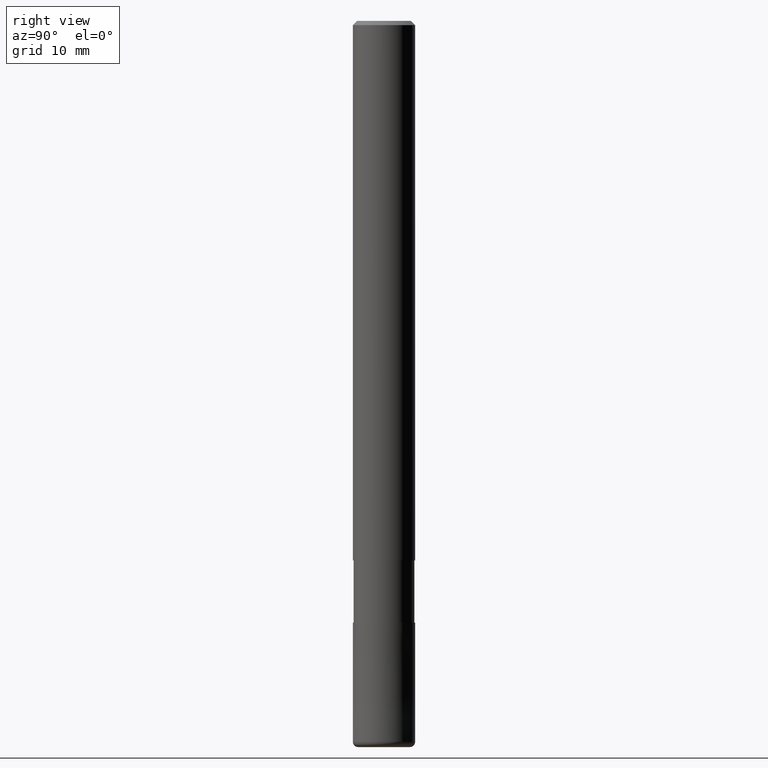
[diagram: clean part render]
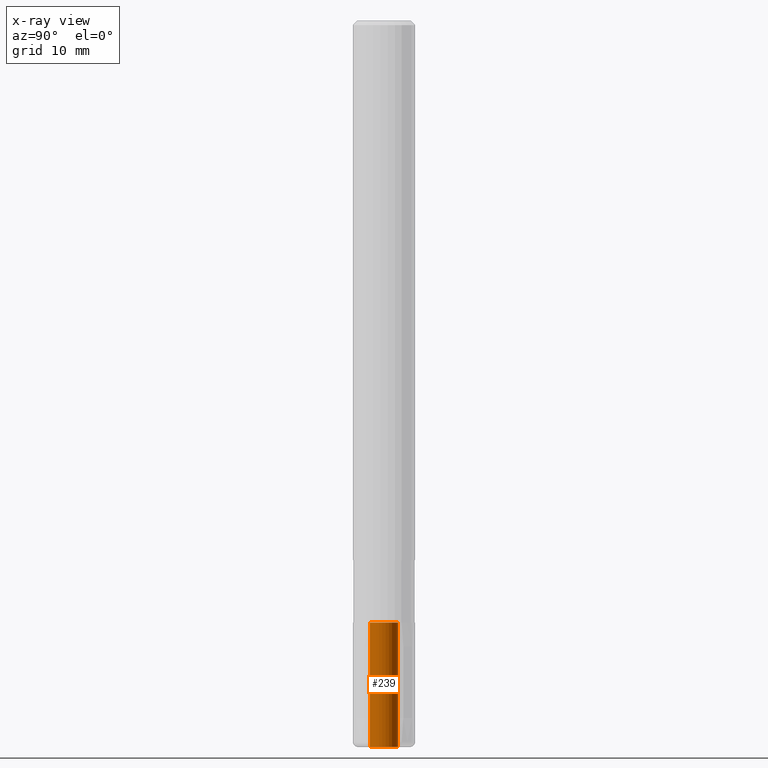
[diagram: x-ray — body ghosted, one internal face saturated and labeled with its STEP entity id]
A machine part, right view, then the same camera in x-ray: the body is ghosted and one INTERNAL B-rep face — a face not visible from any outside direction — is saturated and labeled: STEP entity #239.
In plain terms, the highlighted cylindrical surface (edge-blend (fillet) strip) has radius 1.35 mm, axis along (-0, -0, 1).
Its self-contained STEP definition (entity closure, byte-faithful):
#121=VERTEX_POINT('',#310);
#151=EDGE_CURVE('',#251,#213,#345,.T.);
#157=EDGE_CURVE('',#227,#251,#351,.T.);
#195=EDGE_CURVE('',#121,#227,#396,.T.);
#205=EDGE_CURVE('',#121,#213,#407,.T.);
#213=VERTEX_POINT('',#415);
#227=VERTEX_POINT('',#431);
#239=ADVANCED_FACE('',(#445),#446,.F.);
#251=VERTEX_POINT('',#459);
#310=CARTESIAN_POINT('',(0.0,1.35,-58.0));
#345=LINE('',#563,#564);
#351=CIRCLE('',#571,1.35);
#396=LINE('',#627,#628);
#407=CIRCLE('',#643,1.35);
#415=CARTESIAN_POINT('',(1.65321857766021E-016,-1.35,-58.0));
#431=CARTESIAN_POINT('',(0.0,1.35,-70.0));
#445=FACE_OUTER_BOUND('',#687,.T.);
#446=CYLINDRICAL_SURFACE('',#688,1.35);
#459=CARTESIAN_POINT('',(1.65321857766021E-016,-1.35,-70.0));
#563=CARTESIAN_POINT('',(1.65321857766021E-016,-1.35,-64.0));
#564=VECTOR('',#799,1.0);
#571=AXIS2_PLACEMENT_3D('',#800,#801,#802);
#627=CARTESIAN_POINT('',(-1.65321857766021E-016,1.35,-64.0));
#628=VECTOR('',#871,1.0);
#643=AXIS2_PLACEMENT_3D('',#884,#885,#886);
#687=EDGE_LOOP('',(#931,#932,#933,#934));
#688=AXIS2_PLACEMENT_3D('',#935,#936,#937);
#799=DIRECTION('',(0.0,-0.0,1.0));
#800=CARTESIAN_POINT('',(0.0,0.0,-70.0));
#801=DIRECTION('',(0.0,0.0,-1.0));
#802=DIRECTION('',(0.0,1.0,0.0));
#871=DIRECTION('',(0.0,-0.0,-1.0));
#884=CARTESIAN_POINT('',(0.0,0.0,-58.0));
#885=DIRECTION('',(0.0,0.0,-1.0));
#886=DIRECTION('',(0.0,1.0,0.0));
#931=ORIENTED_EDGE('',*,*,#195,.T.);
#932=ORIENTED_EDGE('',*,*,#157,.T.);
#933=ORIENTED_EDGE('',*,*,#151,.T.);
#934=ORIENTED_EDGE('',*,*,#205,.F.);
#935=CARTESIAN_POINT('',(0.0,0.0,-64.0));
#936=DIRECTION('',(-0.0,-0.0,1.0));
#937=DIRECTION('',(0.0,1.0,0.0));